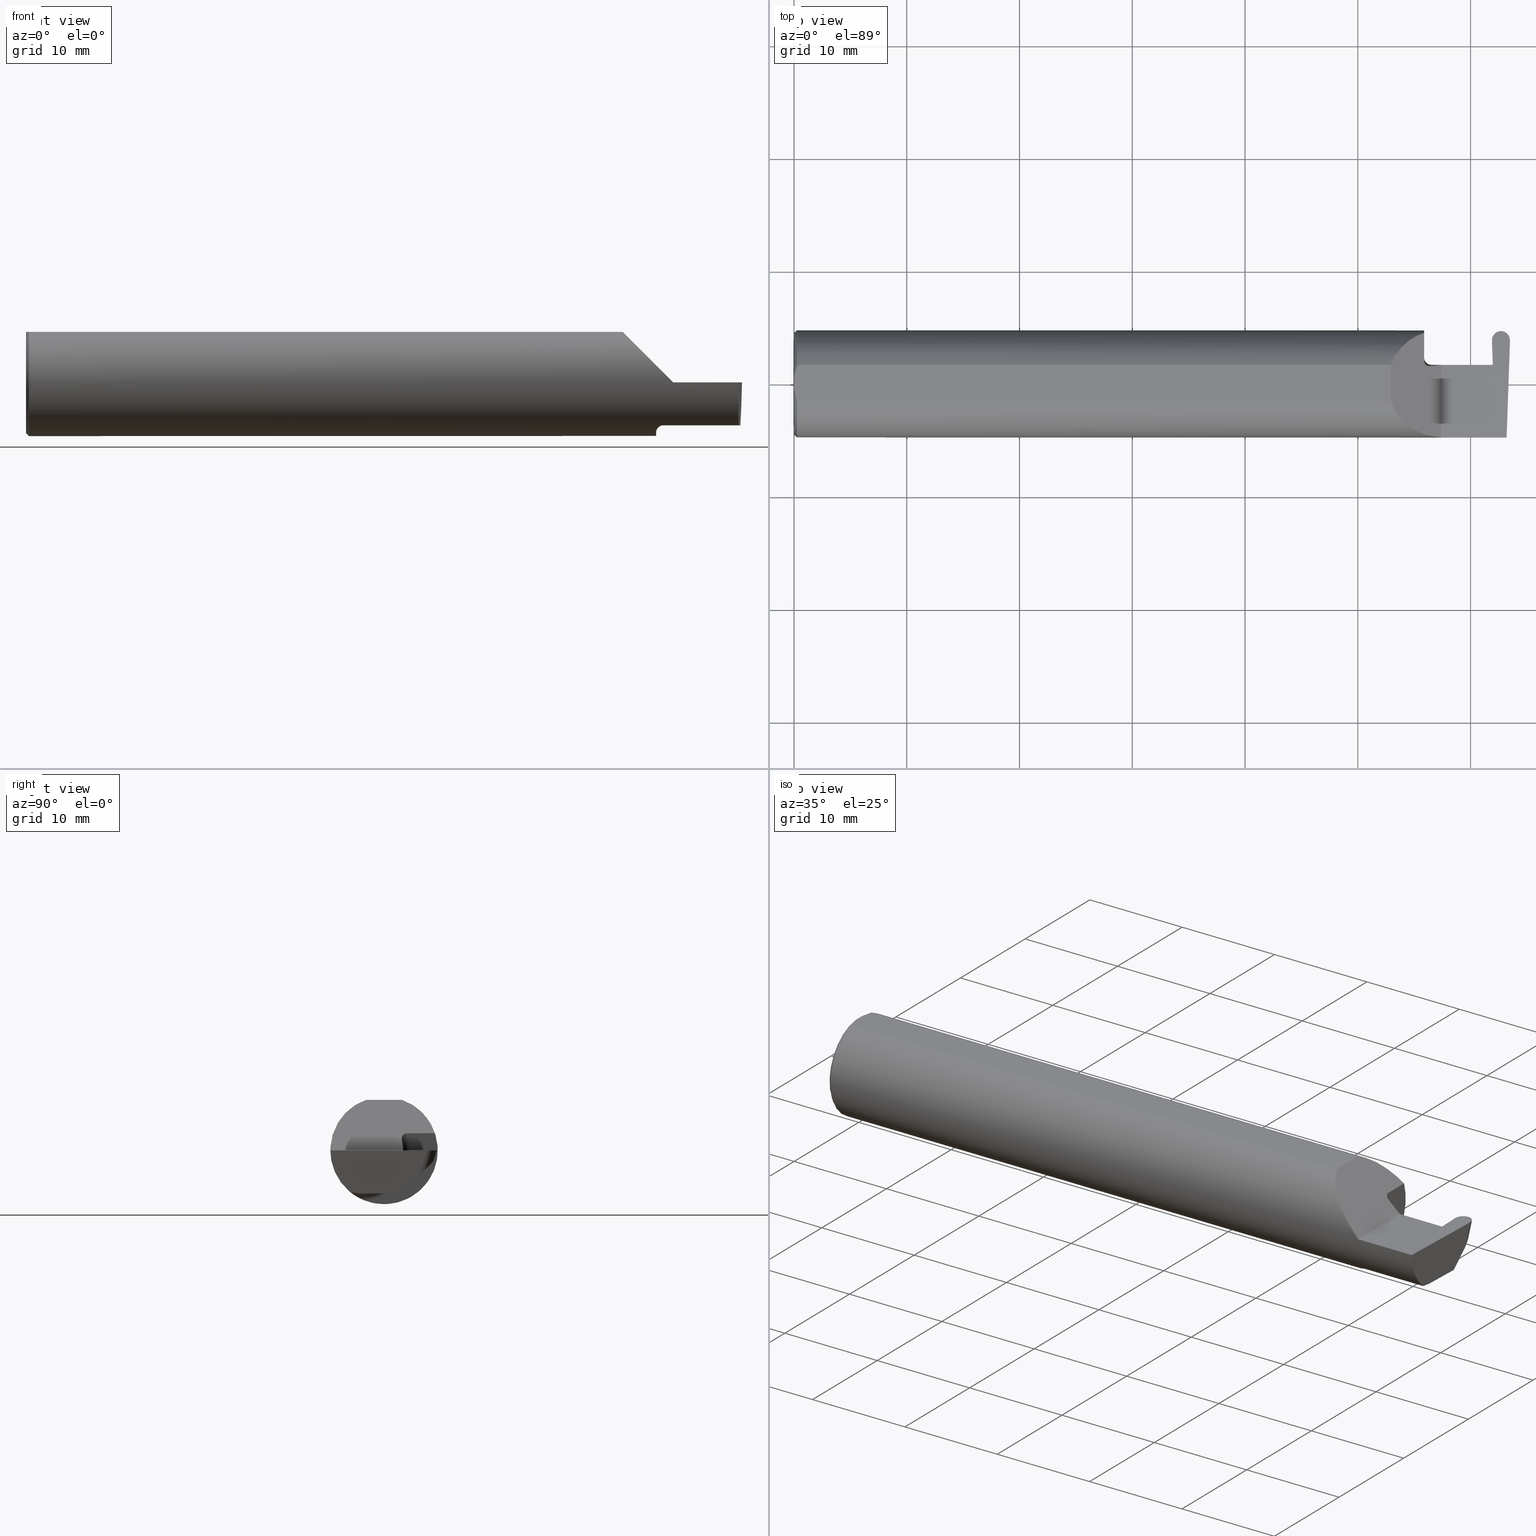
[diagram: canonical four-view strip — front | top / right | iso, engineering-drawing reading convention]
A machine part, canonical four-view strip (front | top / right | iso — engineering-drawing reading convention). The complete STEP part file that produces these views, byte-faithful:
ISO-10303-21;
HEADER;
FILE_DESCRIPTION (( 'STEP AP203' ),
    '1' );
FILE_NAME ('222152-GFR062-4.STEP',
    '2024-06-26T19:09:45',
    ( '' ),
    ( '' ),
    'SwSTEP 2.0',
    'SolidWorks 2024',
    '' );
FILE_SCHEMA (( 'CONFIG_CONTROL_DESIGN' ));
ENDSEC;

DATA;
#1 = FACE_OUTER_BOUND ( 'NONE', #136, .T. ) ;
#2 = DIRECTION ( 'NONE',  ( -0.03489949670249307273, -0.9993908270190959842, 0.000000000000000000 ) ) ;
#3 = ADVANCED_FACE ( 'NONE', ( #120 ), #345, .F. ) ;
#4 = LINE ( 'NONE', #230, #67 ) ;
#5 = ORIENTED_EDGE ( 'NONE', *, *, #566, .F. ) ;
#6 = AXIS2_PLACEMENT_3D ( 'NONE', #591, #482, #693 ) ;
#7 = VECTOR ( 'NONE', #521, 39.37007874015748143 ) ;
#8 = DIRECTION ( 'NONE',  ( -1.000000000000000000, -0.000000000000000000, -0.000000000000000000 ) ) ;
#9 = FACE_OUTER_BOUND ( 'NONE', #270, .T. ) ;
#10 = EDGE_CURVE ( 'NONE', #474, #621, #190, .T. ) ;
#11 = CARTESIAN_POINT ( 'NONE',  ( 2.260000000000000231, -0.2500000000000000555, 2.939152317953647352E-17 ) ) ;
#12 = ORIENTED_EDGE ( 'NONE', *, *, #398, .F. ) ;
#13 = APPROVAL ( #314, 'UNSPECIFIED' ) ;
#14 = ORIENTED_EDGE ( 'NONE', *, *, #215, .F. ) ;
#15 = CARTESIAN_POINT ( 'NONE',  ( 2.200000000000000178, 0.000000000000000000, 0.000000000000000000 ) ) ;
#16 = FACE_OUTER_BOUND ( 'NONE', #84, .T. ) ;
#17 = ORIENTED_EDGE ( 'NONE', *, *, #162, .F. ) ;
#18 = DATE_AND_TIME ( #28, #681 ) ;
#19 = DIRECTION ( 'NONE',  ( -0.000000000000000000, 1.000000000000000000, -0.000000000000000000 ) ) ;
#20 = DIRECTION ( 'NONE',  ( 0.000000000000000000, 0.000000000000000000, -1.000000000000000000 ) ) ;
#21 = ORIENTED_EDGE ( 'NONE', *, *, #525, .F. ) ;
#22 = DATE_AND_TIME ( #249, #272 ) ;
#23 = APPROVAL ( #319, 'UNSPECIFIED' ) ;
#24 = CARTESIAN_POINT ( 'NONE',  ( 2.083649999999998670, -0.2500000000000000555, 0.1763499999999999235 ) ) ;
#25 = LINE ( 'NONE', #312, #271 ) ;
#26 = ORIENTED_EDGE ( 'NONE', *, *, #322, .F. ) ;
#27 = EDGE_CURVE ( 'NONE', #168, #309, #118, .T. ) ;
#28 = CALENDAR_DATE ( 2024, 26, 6 ) ;
#29 = CARTESIAN_POINT ( 'NONE',  ( 2.436880131316879083, 0.1519786885938757270, 0.000000000000000000 ) ) ;
#30 = FACE_OUTER_BOUND ( 'NONE', #463, .T. ) ;
#31 = ORIENTED_EDGE ( 'NONE', *, *, #59, .T. ) ;
#32 = CLOSED_SHELL ( 'NONE', ( #38, #70, #344, #187, #663, #386, #194, #369, #245, #327, #33, #289, #220, #169, #90, #690, #3, #338, #540 ) ) ;
#33 = ADVANCED_FACE ( 'NONE', ( #9 ), #500, .T. ) ;
#34 = APPROVAL_PERSON_ORGANIZATION ( #133, #13, #674 ) ;
#35 = CARTESIAN_POINT ( 'NONE',  ( 2.499932917084233264, 0.1506083980881225692, 0.000000000000000000 ) ) ;
#36 = VERTEX_POINT ( 'NONE', #660 ) ;
#37 = CARTESIAN_POINT ( 'NONE',  ( 2.214233757172356043, 0.06188798250606979828, 0.04576624282764353568 ) ) ;
#38 = ADVANCED_FACE ( 'NONE', ( #183 ), #637, .T. ) ;
#39 =( BOUNDED_CURVE ( )  B_SPLINE_CURVE ( 3, ( #165, #644, #545, #101 ),
 .UNSPECIFIED., .F., .F. ) 
 B_SPLINE_CURVE_WITH_KNOTS ( ( 4, 4 ),
 ( 0.8789888184544107919, 1.107026853503860098 ),
 .UNSPECIFIED. ) 
 CURVE ( )  GEOMETRIC_REPRESENTATION_ITEM ( )  RATIONAL_B_SPLINE_CURVE ( ( 1.000000000000000000, 0.9956712472009928705, 0.9956712472009928705, 1.000000000000000000 ) ) 
 REPRESENTATION_ITEM ( '' )  );
#40 = CARTESIAN_POINT ( 'NONE',  ( 2.488131149766799943, -0.1873499999999999888, 0.000000000000000000 ) ) ;
#41 = EDGE_LOOP ( 'NONE', ( #528, #677, #217, #643 ) ) ;
#42 = CARTESIAN_POINT ( 'NONE',  ( 2.200000000000000178, 0.08104282222773610822, 0.05999999999999957451 ) ) ;
#43 = CARTESIAN_POINT ( 'NONE',  ( 0.000000000000000000, 0.000000000000000000, 0.000000000000000000 ) ) ;
#44 = VERTEX_POINT ( 'NONE', #61 ) ;
#45 = CARTESIAN_POINT ( 'NONE',  ( 2.211575684638518169, 0.06248591091235530803, 0.04842431536148222859 ) ) ;
#46 = LINE ( 'NONE', #273, #614 ) ;
#47 = AXIS2_PLACEMENT_3D ( 'NONE', #254, #145, #20 ) ;
#48 = ORIENTED_EDGE ( 'NONE', *, *, #656, .F. ) ;
#49 = CARTESIAN_POINT ( 'NONE',  ( 2.466287492673649773, 0.2055340630478763031, 0.06427453703177865574 ) ) ;
#50 = EDGE_LOOP ( 'NONE', ( #17, #142, #592, #600, #14 ) ) ;
#51 = CARTESIAN_POINT ( 'NONE',  ( 2.466869195291065964, 0.1338027310180564811, -0.05455566136480603096 ) ) ;
#52 = ORIENTED_EDGE ( 'NONE', *, *, #590, .F. ) ;
#53 = CARTESIAN_POINT ( 'NONE',  ( 2.200000000000000178, -0.06851976604679038685, -0.1743704796142199753 ) ) ;
#54 = EDGE_CURVE ( 'NONE', #252, #368, #698, .T. ) ;
#55 = VECTOR ( 'NONE', #668, 39.37007874015748143 ) ;
#56 = CARTESIAN_POINT ( 'NONE',  ( 0.000000000000000000, 0.06325108694718235836, 0.1763499999999999235 ) ) ;
#57 = VECTOR ( 'NONE', #367, 39.37007874015748143 ) ;
#58 = CALENDAR_DATE ( 2024, 26, 6 ) ;
#59 = EDGE_CURVE ( 'NONE', #44, #404, #452, .T. ) ;
#60 = CARTESIAN_POINT ( 'NONE',  ( 2.083649999999998670, -0.06325108694718283020, 0.1763499999999999235 ) ) ;
#61 = CARTESIAN_POINT ( 'NONE',  ( 2.083649999999998670, 0.06325108694718283020, 0.1763499999999999235 ) ) ;
#62 = CARTESIAN_POINT ( 'NONE',  ( 0.000000000000000000, 0.000000000000000000, 0.000000000000000000 ) ) ;
#63 = CARTESIAN_POINT ( 'NONE',  ( 2.487084196965268390, -0.1623470442677540371, -0.1099340280425340211 ) ) ;
#64 =( BOUNDED_CURVE ( )  B_SPLINE_CURVE ( 3, ( #35, #83, #465, #671 ),
 .UNSPECIFIED., .F., .F. ) 
 B_SPLINE_CURVE_WITH_KNOTS ( ( 4, 4 ),
 ( 1.627103621474502049, 3.225696776093215590 ),
 .UNSPECIFIED. ) 
 CURVE ( )  GEOMETRIC_REPRESENTATION_ITEM ( )  RATIONAL_B_SPLINE_CURVE ( ( 1.000000000000000000, 0.7981407609938108161, 0.7981407609938108161, 1.000000000000000000 ) ) 
 REPRESENTATION_ITEM ( '' )  );
#65 = CARTESIAN_POINT ( 'NONE',  ( 0.009999999999999346217, -0.06325108694718235836, 0.1763499999999999235 ) ) ;
#66 = CARTESIAN_POINT ( 'NONE',  ( 2.441498648347320000, 0.06357628547474601655, -0.09063792740366179157 ) ) ;
#67 = VECTOR ( 'NONE', #349, 39.37007874015748143 ) ;
#68 = CIRCLE ( 'NONE', #462, 0.1773500000000005072 ) ;
#69 = ORIENTED_EDGE ( 'NONE', *, *, #398, .T. ) ;
#70 = ADVANCED_FACE ( 'NONE', ( #231 ), #347, .F. ) ;
#71 = LINE ( 'NONE', #513, #552 ) ;
#72 = ADVANCED_BREP_SHAPE_REPRESENTATION ( '222152-GFR062-4', ( #170, #225 ), #155 ) ;
#73 = CARTESIAN_POINT ( 'NONE',  ( 2.436235694025149279, 0.1704329581048291409, 7.809760431069554296E-18 ) ) ;
#74 = COORDINATED_UNIVERSAL_TIME_OFFSET ( 8, 0, .BEHIND. ) ;
#75 = CARTESIAN_POINT ( 'NONE',  ( 0.001616639753276218755, 0.03405189565400963680, 0.1763499999999999235 ) ) ;
#76 = LINE ( 'NONE', #191, #374 ) ;
#77 = VERTEX_POINT ( 'NONE', #549 ) ;
#78 = PERSON_AND_ORGANIZATION ( #192, #649 ) ;
#79 = AXIS2_PLACEMENT_3D ( 'NONE', #554, #180, #603 ) ;
#80 = VECTOR ( 'NONE', #203, 39.37007874015748143 ) ;
#81 = DIRECTION ( 'NONE',  ( -1.000000000000000000, 0.000000000000000000, 1.224646799147353947E-16 ) ) ;
#82 = EDGE_CURVE ( 'NONE', #621, #411, #558, .T. ) ;
#83 = CARTESIAN_POINT ( 'NONE',  ( 2.500625205974851273, 0.1704329581048291409, -1.247844596711688058E-17 ) ) ;
#84 = EDGE_LOOP ( 'NONE', ( #428, #5, #612, #12 ) ) ;
#85 = PERSON_AND_ORGANIZATION ( #192, #649 ) ;
#86 = CARTESIAN_POINT ( 'NONE',  ( 0.000000000000000000, 0.000000000000000000, 0.000000000000000000 ) ) ;
#87 = DIRECTION ( 'NONE',  ( 0.000000000000000000, -0.7071067811865516806, 0.7071067811865434649 ) ) ;
#88 = ORIENTED_EDGE ( 'NONE', *, *, #444, .F. ) ;
#89 = DATE_TIME_ROLE ( 'classification_date' ) ;
#90 = ADVANCED_FACE ( 'NONE', ( #1 ), #654, .F. ) ;
#91 = CARTESIAN_POINT ( 'NONE',  ( 2.430739223982273156, 0.06664999999999991764, 0.000000000000000000 ) ) ;
#92 =( BOUNDED_CURVE ( )  B_SPLINE_CURVE ( 3, ( #119, #442, #342, #449 ),
 .UNSPECIFIED., .F., .F. ) 
 B_SPLINE_CURVE_WITH_KNOTS ( ( 4, 4 ),
 ( 1.556955361882043976, 3.130020595955853135 ),
 .UNSPECIFIED. ) 
 CURVE ( )  GEOMETRIC_REPRESENTATION_ITEM ( )  RATIONAL_B_SPLINE_CURVE ( ( 1.000000000000000000, 0.8042027643195526210, 0.8042027643195526210, 1.000000000000000000 ) ) 
 REPRESENTATION_ITEM ( '' )  );
#93 = PLANE ( 'NONE',  #571 ) ;
#94 = ORIENTED_EDGE ( 'NONE', *, *, #172, .F. ) ;
#95 = EDGE_CURVE ( 'NONE', #168, #343, #25, .T. ) ;
#96 = AXIS2_PLACEMENT_3D ( 'NONE', #123, #553, #651 ) ;
#97 = B_SPLINE_CURVE_WITH_KNOTS ( 'NONE', 3,
 ( #128, #253, #307, #662 ),
 .UNSPECIFIED., .F., .F.,
 ( 4, 4 ),
 ( 0.009771445421851449736, 0.01092787937989102981 ),
 .UNSPECIFIED. ) ;
#98 = DIRECTION ( 'NONE',  ( -0.01806954526206907760, 0.01744955702544846027, 0.9996844524616944616 ) ) ;
#99 = ORIENTED_EDGE ( 'NONE', *, *, #618, .T. ) ;
#100 = CARTESIAN_POINT ( 'NONE',  ( 2.204146777195072016, 0.06733032564037060019, 0.05585322280492721614 ) ) ;
#101 = CARTESIAN_POINT ( 'NONE',  ( 2.489143054109411057, -0.08334999999999892495, -0.1500000000000000500 ) ) ;
#102 = ORIENTED_EDGE ( 'NONE', *, *, #172, .T. ) ;
#103 = DIRECTION ( 'NONE',  ( 1.000000000000000000, 5.045929899059384297E-16, 0.000000000000000000 ) ) ;
#104 = CARTESIAN_POINT ( 'NONE',  ( 2.497385173767517230, 0.1218770478189730028, -0.08842600372417715182 ) ) ;
#105 = EDGE_LOOP ( 'NONE', ( #492, #629, #124, #263 ) ) ;
#106 = AXIS2_PLACEMENT_3D ( 'NONE', #43, #433, #439 ) ;
#107 = AXIS2_PLACEMENT_3D ( 'NONE', #15, #103, #425 ) ;
#108 = ORIENTED_EDGE ( 'NONE', *, *, #640, .F. ) ;
#109 = LINE ( 'NONE', #331, #333 ) ;
#110 = ORIENTED_EDGE ( 'NONE', *, *, #222, .F. ) ;
#111 = EDGE_CURVE ( 'NONE', #368, #132, #76, .T. ) ;
#112 = LINE ( 'NONE', #393, #459 ) ;
#113 = CARTESIAN_POINT ( 'NONE',  ( 2.442617647571764028, -0.08334999999999999354, -0.1500000000000000777 ) ) ;
#114 = MECHANICAL_CONTEXT ( 'NONE', #688, 'mechanical' ) ;
#115 = EDGE_CURVE ( 'NONE', #650, #683, #676, .T. ) ;
#116 = CARTESIAN_POINT ( 'NONE',  ( 0.009999999999999346217, 0.000000000000000000, 0.000000000000000000 ) ) ;
#117 = VECTOR ( 'NONE', #185, 39.37007874015748854 ) ;
#118 = LINE ( 'NONE', #286, #117 ) ;
#119 = CARTESIAN_POINT ( 'NONE',  ( 2.439475726232482877, 0.1218770478189730028, -0.08842600372417715182 ) ) ;
#120 = FACE_OUTER_BOUND ( 'NONE', #265, .T. ) ;
#121 = DIRECTION ( 'NONE',  ( 1.000000000000000000, 0.000000000000000000, 0.000000000000000000 ) ) ;
#122 = ORIENTED_EDGE ( 'NONE', *, *, #54, .T. ) ;
#123 = CARTESIAN_POINT ( 'NONE',  ( 2.225000000000000089, -0.08335000000000010456, 0.000000000000000000 ) ) ;
#124 = ORIENTED_EDGE ( 'NONE', *, *, #703, .T. ) ;
#125 = AXIS2_PLACEMENT_3D ( 'NONE', #51, #632, #493 ) ;
#126 = EDGE_CURVE ( 'NONE', #309, #243, #251, .T. ) ;
#127 = LOCAL_TIME ( 12, 9, 45.00000000000000000, #550 ) ;
#128 = CARTESIAN_POINT ( 'NONE',  ( 0.009999999999999346217, -0.06325108694718235836, 0.1763499999999999235 ) ) ;
#129 = CARTESIAN_POINT ( 'NONE',  ( -3.937007874019685528E-05, 0.1723030515431495657, -0.03799999999999999906 ) ) ;
#130 = DIRECTION ( 'NONE',  ( 0.02739170151059996255, -0.3089010440752014142, -0.9506996579664919178 ) ) ;
#131 = DIRECTION ( 'NONE',  ( -0.0003154085283454578109, 0.9999999502587288980, 0.000000000000000000 ) ) ;
#132 = VERTEX_POINT ( 'NONE', #628 ) ;
#133 = PERSON_AND_ORGANIZATION ( #192, #649 ) ;
#134 = CARTESIAN_POINT ( 'NONE',  ( 2.200358271039143165, -0.07873626113568053808, -0.1700887912276896896 ) ) ;
#135 = LINE ( 'NONE', #616, #138 ) ;
#136 = EDGE_LOOP ( 'NONE', ( #164, #197, #280, #569, #147 ) ) ;
#137 = PERSON_AND_ORGANIZATION_ROLE ( 'creator' ) ;
#138 = VECTOR ( 'NONE', #353, 39.37007874015747433 ) ;
#139 = CC_DESIGN_SECURITY_CLASSIFICATION ( #154, ( #306 ) ) ;
#140 = CARTESIAN_POINT ( 'NONE',  ( 2.215028532764138358, -0.1137241120808232253, -0.1488947809299406011 ) ) ;
#141 = CARTESIAN_POINT ( 'NONE',  ( 2.442572338171930646, 0.06030305154315083321, -0.1500000000000000500 ) ) ;
#142 = ORIENTED_EDGE ( 'NONE', *, *, #294, .F. ) ;
#143 = DATE_TIME_ROLE ( 'creation_date' ) ;
#144 = CARTESIAN_POINT ( 'NONE',  ( 2.202960551809340028, -0.09317341542745717631, -0.1626248379125198873 ) ) ;
#145 = DIRECTION ( 'NONE',  ( 1.000000000000000000, 0.000000000000000000, 0.000000000000000000 ) ) ;
#146 = EDGE_CURVE ( 'NONE', #305, #36, #64, .T. ) ;
#147 = ORIENTED_EDGE ( 'NONE', *, *, #82, .T. ) ;
#148 = COORDINATED_UNIVERSAL_TIME_OFFSET ( 8, 0, .BEHIND. ) ;
#149 = CC_DESIGN_DATE_AND_TIME_ASSIGNMENT ( #625, #89, ( #154 ) ) ;
#150 = CARTESIAN_POINT ( 'NONE',  ( 2.499932917084233264, 0.1506083980881225692, 0.000000000000000000 ) ) ;
#151 = ORIENTED_EDGE ( 'NONE', *, *, #115, .T. ) ;
#152 = AXIS2_PLACEMENT_3D ( 'NONE', #502, #241, #658 ) ;
#153 = DIRECTION ( 'NONE',  ( 1.000000000000000000, 0.000000000000000000, 0.000000000000000000 ) ) ;
#154 = SECURITY_CLASSIFICATION ( '', '', #310 ) ;
#155 =( GEOMETRIC_REPRESENTATION_CONTEXT ( 3 ) GLOBAL_UNCERTAINTY_ASSIGNED_CONTEXT ( ( #607 ) ) GLOBAL_UNIT_ASSIGNED_CONTEXT ( ( #330, #538, #488 ) ) REPRESENTATION_CONTEXT ( 'NONE', 'WORKASPACE' ) );
#156 = DIRECTION ( 'NONE',  ( -1.000000000000000000, -5.045929899059384297E-16, -0.000000000000000000 ) ) ;
#157 = ORIENTED_EDGE ( 'NONE', *, *, #613, .F. ) ;
#158 = B_SPLINE_CURVE_WITH_KNOTS ( 'NONE', 3,
 ( #456, #75, #311, #302 ),
 .UNSPECIFIED., .F., .F.,
 ( 4, 4 ),
 ( 0.01188664626022267051, 0.01304646959483758001 ),
 .UNSPECIFIED. ) ;
#159 = PERSON_AND_ORGANIZATION ( #192, #649 ) ;
#160 = FACE_OUTER_BOUND ( 'NONE', #512, .T. ) ;
#161 = VERTEX_POINT ( 'NONE', #196 ) ;
#162 = EDGE_CURVE ( 'NONE', #324, #77, #665, .T. ) ;
#163 = PLANE ( 'NONE',  #595 ) ;
#164 = ORIENTED_EDGE ( 'NONE', *, *, #590, .T. ) ;
#165 = CARTESIAN_POINT ( 'NONE',  ( 2.488026713523223243, -0.1172600179964004286, -0.1461167706989304482 ) ) ;
#166 = VECTOR ( 'NONE', #584, 39.37007874015748143 ) ;
#167 = CC_DESIGN_APPROVAL ( #13, ( #154 ) ) ;
#168 = VERTEX_POINT ( 'NONE', #141 ) ;
#169 = ADVANCED_FACE ( 'NONE', ( #682 ), #514, .F. ) ;
#170 = MANIFOLD_SOLID_BREP ( 'Radii', #32 ) ;
#171 = ORIENTED_EDGE ( 'NONE', *, *, #598, .T. ) ;
#172 = EDGE_CURVE ( 'NONE', #495, #683, #441, .T. ) ;
#173 = CARTESIAN_POINT ( 'NONE',  ( 2.468430450000000054, 0.1753165746847639150, -0.02871425790363830652 ) ) ;
#174 = ORIENTED_EDGE ( 'NONE', *, *, #210, .T. ) ;
#175 = DIRECTION ( 'NONE',  ( 0.000000000000000000, -1.000000000000000000, 0.000000000000000000 ) ) ;
#176 = VECTOR ( 'NONE', #623, 39.37007874015748143 ) ;
#177 = DIRECTION ( 'NONE',  ( 0.9992386149554828290, 0.03489418134010615485, 0.01745240643728358798 ) ) ;
#178 = CARTESIAN_POINT ( 'NONE',  ( 2.468430450000000054, 0.1722870660481372329, -0.03801598549501233187 ) ) ;
#179 = PRODUCT ( '222152-GFR062-4', '222152-GFR062-4', '', ( #114 ) ) ;
#180 = DIRECTION ( 'NONE',  ( 0.9998367324388628408, 0.0003153570480505333835, 0.01806679318280454000 ) ) ;
#181 = PRODUCT_RELATED_PRODUCT_CATEGORY ( 'detail', '', ( #179 ) ) ;
#182 = FACE_OUTER_BOUND ( 'NONE', #50, .T. ) ;
#183 = FACE_OUTER_BOUND ( 'NONE', #221, .T. ) ;
#184 = CARTESIAN_POINT ( 'NONE',  ( 2.236476718690367793, 0.06526343940705725544, 0.02352328130963212902 ) ) ;
#185 = DIRECTION ( 'NONE',  ( -0.01299916717458447432, 0.7070470357949163454, 0.7070470357949245610 ) ) ;
#186 = CIRCLE ( 'NONE', #680, 0.1873499999999999888 ) ;
#187 = ADVANCED_FACE ( 'NONE', ( #30 ), #511, .F. ) ;
#188 = PERSON_AND_ORGANIZATION_ROLE ( 'design_supplier' ) ;
#189 = LINE ( 'NONE', #29, #80 ) ;
#190 =( BOUNDED_CURVE ( )  B_SPLINE_CURVE ( 3, ( #113, #288, #66, #507 ),
 .UNSPECIFIED., .F., .F. ) 
 B_SPLINE_CURVE_WITH_KNOTS ( ( 4, 4 ),
 ( 3.159045946109708236, 4.694935687864668417 ),
 .UNSPECIFIED. ) 
 CURVE ( )  GEOMETRIC_REPRESENTATION_ITEM ( )  RATIONAL_B_SPLINE_CURVE ( ( 1.000000000000000000, 0.8128932002257789335, 0.8128932002257789335, 1.000000000000000000 ) ) 
 REPRESENTATION_ITEM ( '' )  );
#191 = CARTESIAN_POINT ( 'NONE',  ( 3.749399456654646757E-32, -0.1873499999999999610, 3.061616997868383634E-16 ) ) ;
#192 = PERSON ( 'UNSPECIFIED', 'UNSPECIFIED', 'UNSPECIFIED', ('UNSPECIFIED'), ('UNSPECIFIED'), ('UNSPECIFIED') ) ;
#193 = ORIENTED_EDGE ( 'NONE', *, *, #27, .F. ) ;
#194 = ADVANCED_FACE ( 'NONE', ( #16 ), #486, .T. ) ;
#195 = CARTESIAN_POINT ( 'NONE',  ( 2.213203859946834662, -0.1120371980050636346, -0.1501764597936561252 ) ) ;
#196 = CARTESIAN_POINT ( 'NONE',  ( 0.000000000000000000, 0.01880691362239451242, 0.1763499999999999235 ) ) ;
#197 = ORIENTED_EDGE ( 'NONE', *, *, #215, .T. ) ;
#198 = CARTESIAN_POINT ( 'NONE',  ( 2.225000000000000089, 0.06250952145814826777, 0.03500000000000007272 ) ) ;
#199 = CARTESIAN_POINT ( 'NONE',  ( 2.260000000000000231, -0.2500000000000000555, 2.939152317953647352E-17 ) ) ;
#200 = ORIENTED_EDGE ( 'NONE', *, *, #413, .T. ) ;
#201 = AXIS2_PLACEMENT_3D ( 'NONE', #371, #156, #384 ) ;
#202 = VECTOR ( 'NONE', #619, 39.37007874015748143 ) ;
#203 = DIRECTION ( 'NONE',  ( -0.03489949670249346131, 0.9993908270190959842, -0.000000000000000000 ) ) ;
#204 = DIRECTION ( 'NONE',  ( 0.000000000000000000, 0.000000000000000000, -1.000000000000000000 ) ) ;
#205 = VERTEX_POINT ( 'NONE', #469 ) ;
#206 = CALENDAR_DATE ( 2024, 26, 6 ) ;
#207 = DIRECTION ( 'NONE',  ( -0.9992386149554828290, 0.03489418134010577321, 0.01745240643728358798 ) ) ;
#208 = DIRECTION ( 'NONE',  ( 0.000000000000000000, -0.3090169943749482284, -0.9510565162951533091 ) ) ;
#209 = VERTEX_POINT ( 'NONE', #577 ) ;
#210 = EDGE_CURVE ( 'NONE', #324, #36, #410, .T. ) ;
#211 = DIRECTION ( 'NONE',  ( 0.000000000000000000, 0.000000000000000000, 1.000000000000000000 ) ) ;
#212 = ORIENTED_EDGE ( 'NONE', *, *, #95, .F. ) ;
#213 = FACE_OUTER_BOUND ( 'NONE', #365, .T. ) ;
#214 = ORIENTED_EDGE ( 'NONE', *, *, #656, .T. ) ;
#215 = EDGE_CURVE ( 'NONE', #77, #243, #478, .T. ) ;
#216 = DIRECTION ( 'NONE',  ( -1.000000000000000000, -5.045929899059384297E-16, -0.000000000000000000 ) ) ;
#217 = ORIENTED_EDGE ( 'NONE', *, *, #95, .T. ) ;
#218 =( BOUNDED_CURVE ( )  B_SPLINE_CURVE ( 3, ( #346, #227, #653, #236 ),
 .UNSPECIFIED., .F., .T. ) 
 B_SPLINE_CURVE_WITH_KNOTS ( ( 4, 4 ),
 ( 3.153164711223715777, 4.726229945297542478 ),
 .UNSPECIFIED. ) 
 CURVE ( )  GEOMETRIC_REPRESENTATION_ITEM ( )  RATIONAL_B_SPLINE_CURVE ( ( 1.000000000000000000, 0.8042027643195484021, 0.8042027643195484021, 1.000000000000000000 ) ) 
 REPRESENTATION_ITEM ( '' )  );
#219 = CYLINDRICAL_SURFACE ( 'NONE', #106, 0.1873499999999999888 ) ;
#220 = ADVANCED_FACE ( 'NONE', ( #580 ), #93, .F. ) ;
#221 = EDGE_LOOP ( 'NONE', ( #470, #151, #94, #695 ) ) ;
#222 = EDGE_CURVE ( 'NONE', #305, #368, #135, .T. ) ;
#223 = CARTESIAN_POINT ( 'NONE',  ( 0.009999999999999346217, 0.06325108694718235836, 0.1763499999999999235 ) ) ;
#224 = AXIS2_PLACEMENT_3D ( 'NONE', #228, #177, #605 ) ;
#225 = AXIS2_PLACEMENT_3D ( 'NONE', #378, #696, #153 ) ;
#226 = ORIENTED_EDGE ( 'NONE', *, *, #10, .T. ) ;
#227 = CARTESIAN_POINT ( 'NONE',  ( 2.486891473655445939, 0.1715521506114310035, -0.03875090093171854738 ) ) ;
#228 = CARTESIAN_POINT ( 'NONE',  ( 2.436880131316879083, 0.1519786885938757270, 0.000000000000000000 ) ) ;
#229 = EDGE_CURVE ( 'NONE', #335, #343, #360, .T. ) ;
#230 = CARTESIAN_POINT ( 'NONE',  ( 2.199999999999998845, 0.06655862405286083749, -0.005234924505475069094 ) ) ;
#231 = FACE_OUTER_BOUND ( 'NONE', #329, .T. ) ;
#232 = CC_DESIGN_PERSON_AND_ORGANIZATION_ASSIGNMENT ( #259, #520, ( #154 ) ) ;
#233 = LINE ( 'NONE', #295, #320 ) ;
#234 = TOROIDAL_SURFACE ( 'NONE', #201, 0.1750000000000001277, 0.02499999999999993894 ) ;
#235 = ORIENTED_EDGE ( 'NONE', *, *, #547, .T. ) ;
#236 = CARTESIAN_POINT ( 'NONE',  ( 2.497385173767517230, 0.1218770478189730028, -0.08842600372417715182 ) ) ;
#237 = PRODUCT_DEFINITION_SHAPE ( 'NONE', 'NONE',  #437 ) ;
#238 = CARTESIAN_POINT ( 'NONE',  ( 2.200000000000000178, -0.08335000000000011844, 0.000000000000000000 ) ) ;
#239 = ORIENTED_EDGE ( 'NONE', *, *, #494, .F. ) ;
#240 = CARTESIAN_POINT ( 'NONE',  ( 2.430708765333227994, 0.06661954135095465857, -0.001744974835128322013 ) ) ;
#241 = DIRECTION ( 'NONE',  ( 7.486943585142156164E-15, -0.9998476951563912696, 0.01745240643728358451 ) ) ;
#242 = EDGE_CURVE ( 'NONE', #474, #168, #406, .T. ) ;
#243 = VERTEX_POINT ( 'NONE', #334 ) ;
#244 = LINE ( 'NONE', #24, #506 ) ;
#245 = ADVANCED_FACE ( 'NONE', ( #268 ), #234, .F. ) ;
#246 = DIRECTION ( 'NONE',  ( 1.000000000000000000, 0.000000000000000000, 0.000000000000000000 ) ) ;
#247 = VECTOR ( 'NONE', #339, 39.37007874015748143 ) ;
#248 = ORIENTED_EDGE ( 'NONE', *, *, #413, .F. ) ;
#249 = CALENDAR_DATE ( 2024, 26, 6 ) ;
#250 = CARTESIAN_POINT ( 'NONE',  ( 2.206304331342287650, -0.1022198306720688427, -0.1570962426853820260 ) ) ;
#251 = LINE ( 'NONE', #308, #627 ) ;
#252 = VERTEX_POINT ( 'NONE', #646 ) ;
#253 = CARTESIAN_POINT ( 'NONE',  ( 0.005151108632379595466, -0.04888864921576189376, 0.1763499999999999235 ) ) ;
#254 = CARTESIAN_POINT ( 'NONE',  ( 0.000000000000000000, 0.000000000000000000, 0.000000000000000000 ) ) ;
#255 = ORIENTED_EDGE ( 'NONE', *, *, #634, .F. ) ;
#256 = CARTESIAN_POINT ( 'NONE',  ( 2.208439486659306450, -0.1064616213911155768, -0.1542305641651502135 ) ) ;
#257 = CARTESIAN_POINT ( 'NONE',  ( -3.937007874019685528E-05, 0.1846500000000000363, 0.000000000000000000 ) ) ;
#258 = ORIENTED_EDGE ( 'NONE', *, *, #608, .T. ) ;
#259 = PERSON_AND_ORGANIZATION ( #192, #649 ) ;
#260 = APPROVAL_PERSON_ORGANIZATION ( #159, #279, #326 ) ;
#261 = APPLICATION_PROTOCOL_DEFINITION ( 'international standard', 'config_control_design', 1994, #325 ) ;
#262 = DIRECTION ( 'NONE',  ( -0.7071067811865509034, 0.000000000000000000, 0.7071067811865440200 ) ) ;
#263 = ORIENTED_EDGE ( 'NONE', *, *, #467, .T. ) ;
#264 = FACE_OUTER_BOUND ( 'NONE', #617, .T. ) ;
#265 = EDGE_LOOP ( 'NONE', ( #226, #318, #193, #624 ) ) ;
#266 =( BOUNDED_CURVE ( )  B_SPLINE_CURVE ( 3, ( #445, #560, #555, #395 ),
 .UNSPECIFIED., .F., .F. ) 
 B_SPLINE_CURVE_WITH_KNOTS ( ( 4, 4 ),
 ( 4.712388980384688786, 5.938809479923471635 ),
 .UNSPECIFIED. ) 
 CURVE ( )  GEOMETRIC_REPRESENTATION_ITEM ( )  RATIONAL_B_SPLINE_CURVE ( ( 1.000000000000000000, 0.8785364999009659392, 0.8785364999009659392, 1.000000000000000000 ) ) 
 REPRESENTATION_ITEM ( '' )  );
#267 = CARTESIAN_POINT ( 'NONE',  ( 2.199999999999999734, 0.07723724220654795691, 0.05999999999999976186 ) ) ;
#268 = FACE_OUTER_BOUND ( 'NONE', #105, .T. ) ;
#269 = EDGE_CURVE ( 'NONE', #252, #205, #39, .T. ) ;
#270 = EDGE_LOOP ( 'NONE', ( #546, #466, #298, #313, #523, #248, #633, #515, #645 ) ) ;
#271 = VECTOR ( 'NONE', #573, 39.37007874015748143 ) ;
#272 = LOCAL_TIME ( 12, 9, 45.00000000000000000, #74 ) ;
#273 = CARTESIAN_POINT ( 'NONE',  ( 2.439859874782298377, 0.06664999999999998703, -9.645561665750239894E-21 ) ) ;
#274 = ORIENTED_EDGE ( 'NONE', *, *, #162, .T. ) ;
#275 = CYLINDRICAL_SURFACE ( 'NONE', #125, 0.03150000000000000716 ) ;
#276 = EDGE_LOOP ( 'NONE', ( #292, #438, #337, #443, #212, #534 ) ) ;
#277 = EDGE_CURVE ( 'NONE', #205, #474, #109, .T. ) ;
#278 = DIRECTION ( 'NONE',  ( -0.02739170151059996255, 0.3089010440752014142, 0.9506996579664918068 ) ) ;
#279 = APPROVAL ( #375, 'UNSPECIFIED' ) ;
#280 = ORIENTED_EDGE ( 'NONE', *, *, #126, .F. ) ;
#281 = CARTESIAN_POINT ( 'NONE',  ( 2.200000000000000178, -0.08335000000000011844, 0.000000000000000000 ) ) ;
#282 = AXIS2_PLACEMENT_3D ( 'NONE', #281, #499, #175 ) ;
#283 = CIRCLE ( 'NONE', #107, 0.1873499999999999888 ) ;
#284 = CARTESIAN_POINT ( 'NONE',  ( 2.439859874782298377, 0.06664999999999998703, -9.645561665750239894E-21 ) ) ;
#285 = CARTESIAN_POINT ( 'NONE',  ( 2.442617647571764028, -0.08334999999999999354, -0.1500000000000000777 ) ) ;
#286 = CARTESIAN_POINT ( 'NONE',  ( 2.440100800615974563, 0.1947342254272303730, -0.01556882611591895414 ) ) ;
#287 = DIRECTION ( 'NONE',  ( 1.000000000000000000, 7.488084056613327882E-15, -0.000000000000000000 ) ) ;
#288 = CARTESIAN_POINT ( 'NONE',  ( 2.442590694315768030, 0.002105059811798115545, -0.1500000000000000777 ) ) ;
#289 = ADVANCED_FACE ( 'NONE', ( #381 ), #328, .F. ) ;
#290 = CARTESIAN_POINT ( 'NONE',  ( 2.430647848035137226, 0.06655862405286411265, -0.005234924505384965822 ) ) ;
#291 = AXIS2_PLACEMENT_3D ( 'NONE', #62, #659, #451 ) ;
#292 = ORIENTED_EDGE ( 'NONE', *, *, #126, .T. ) ;
#293 = CC_DESIGN_APPROVAL ( #279, ( #437 ) ) ;
#294 = EDGE_CURVE ( 'NONE', #209, #324, #593, .T. ) ;
#295 = CARTESIAN_POINT ( 'NONE',  ( 2.439859874782298377, 0.06664999999999998703, 0.000000000000000000 ) ) ;
#296 = DIRECTION ( 'NONE',  ( -1.000000000000000000, -0.000000000000000000, -0.000000000000000000 ) ) ;
#297 = DIMENSIONAL_EXPONENTS ( 1.000000000000000000, 0.000000000000000000, 0.000000000000000000, 0.000000000000000000, 0.000000000000000000, 0.000000000000000000, 0.000000000000000000 ) ;
#298 = ORIENTED_EDGE ( 'NONE', *, *, #613, .T. ) ;
#299 = DIRECTION ( 'NONE',  ( 0.000000000000000000, 0.000000000000000000, -1.000000000000000000 ) ) ;
#300 = DIRECTION ( 'NONE',  ( -1.000000000000000000, -0.000000000000000000, -0.000000000000000000 ) ) ;
#301 = PERSON_AND_ORGANIZATION ( #192, #649 ) ;
#302 = CARTESIAN_POINT ( 'NONE',  ( 0.009999999999999346217, 0.06325108694718235836, 0.1763499999999999235 ) ) ;
#303 = CARTESIAN_POINT ( 'NONE',  ( 0.009999999999999346217, 0.000000000000000000, 0.000000000000000000 ) ) ;
#304 = AXIS2_PLACEMENT_3D ( 'NONE', #238, #556, #610 ) ;
#305 = VERTEX_POINT ( 'NONE', #150 ) ;
#306 = PRODUCT_DEFINITION_FORMATION_WITH_SPECIFIED_SOURCE ( 'ANY', '', #179, .NOT_KNOWN. ) ;
#307 = CARTESIAN_POINT ( 'NONE',  ( 0.001595548104417217512, -0.03385300050298979679, 0.1763499999999999235 ) ) ;
#308 = CARTESIAN_POINT ( 'NONE',  ( 2.433494859791076159, 0.2360451904409928692, 0.02574213889784403991 ) ) ;
#309 = VERTEX_POINT ( 'NONE', #702 ) ;
#310 = SECURITY_CLASSIFICATION_LEVEL ( 'unclassified' ) ;
#311 = CARTESIAN_POINT ( 'NONE',  ( 0.005155213631852355663, 0.04890080824240217866, 0.1763499999999999235 ) ) ;
#312 = CARTESIAN_POINT ( 'NONE',  ( -3.937007874019685528E-05, 0.06030305154315079852, -0.1500000000000000500 ) ) ;
#313 = ORIENTED_EDGE ( 'NONE', *, *, #640, .T. ) ;
#314 = APPROVAL_STATUS ( 'not_yet_approved' ) ;
#315 = CARTESIAN_POINT ( 'NONE',  ( 2.200000000000000178, 0.1774824568795465018, 0.05999999999999961614 ) ) ;
#316 = B_SPLINE_CURVE_WITH_KNOTS ( 'NONE', 3,
 ( #675, #420, #240, #91 ),
 .UNSPECIFIED., .F., .F.,
 ( 4, 4 ),
 ( 0.000000000000000000, 1.000000000000000000 ),
 .UNSPECIFIED. ) ;
#317 = CARTESIAN_POINT ( 'NONE',  ( -3.937007874019685528E-05, 0.1846500000000000363, 0.000000000000000000 ) ) ;
#318 = ORIENTED_EDGE ( 'NONE', *, *, #352, .F. ) ;
#319 = APPROVAL_STATUS ( 'not_yet_approved' ) ;
#320 = VECTOR ( 'NONE', #287, 39.37007874015748143 ) ;
#321 = CARTESIAN_POINT ( 'NONE',  ( 2.222331837506049901, 0.06186927743178083361, 0.03766816249395005256 ) ) ;
#322 = EDGE_CURVE ( 'NONE', #44, #669, #341, .T. ) ;
#323 = CARTESIAN_POINT ( 'NONE',  ( 2.103305020982357387, 0.1180511404724818164, 0.1566949790176410395 ) ) ;
#324 = VERTEX_POINT ( 'NONE', #376 ) ;
#325 = APPLICATION_CONTEXT ( 'configuration controlled 3d designs of mechanical parts and assemblies' ) ;
#326 = APPROVAL_ROLE ( '' ) ;
#327 = ADVANCED_FACE ( 'NONE', ( #336 ), #491, .T. ) ;
#328 = PLANE ( 'NONE',  #6 ) ;
#329 = EDGE_LOOP ( 'NONE', ( #639, #200, #171, #385 ) ) ;
#330 =( CONVERSION_BASED_UNIT ( 'INCH', #533 ) LENGTH_UNIT ( ) NAMED_UNIT ( #297 ) );
#331 = CARTESIAN_POINT ( 'NONE',  ( 2.733184360054362827, -0.08334999999999892495, -0.1500000000000000500 ) ) ;
#332 = ORIENTED_EDGE ( 'NONE', *, *, #686, .F. ) ;
#333 = VECTOR ( 'NONE', #379, 39.37007874015748143 ) ;
#334 = CARTESIAN_POINT ( 'NONE',  ( 2.439475726232482877, 0.1218770478189730028, -0.08842600372417715182 ) ) ;
#335 = VERTEX_POINT ( 'NONE', #104 ) ;
#336 = FACE_OUTER_BOUND ( 'NONE', #430, .T. ) ;
#337 = ORIENTED_EDGE ( 'NONE', *, *, #494, .T. ) ;
#338 = ADVANCED_FACE ( 'NONE', ( #213 ), #275, .T. ) ;
#339 = DIRECTION ( 'NONE',  ( 0.02739170151059983765, 0.3089010440752013587, 0.9506996579664918068 ) ) ;
#340 = CARTESIAN_POINT ( 'NONE',  ( 2.487121452143544964, -0.1873499999999999610, -0.05781030015605127109 ) ) ;
#341 =( BOUNDED_CURVE ( )  B_SPLINE_CURVE ( 3, ( #484, #323, #700, #536 ),
 .UNSPECIFIED., .F., .F. ) 
 B_SPLINE_CURVE_WITH_KNOTS ( ( 4, 4 ),
 ( 0.3443758272561143752, 1.244796402594305018 ),
 .UNSPECIFIED. ) 
 CURVE ( )  GEOMETRIC_REPRESENTATION_ITEM ( )  RATIONAL_B_SPLINE_CURVE ( ( 1.000000000000000000, 0.9335704097038357574, 0.9335704097038357574, 1.000000000000000000 ) ) 
 REPRESENTATION_ITEM ( '' )  );
#342 = CARTESIAN_POINT ( 'NONE',  ( 2.449969426344554169, 0.1715521506114305039, -0.03875090093171906086 ) ) ;
#343 = VERTEX_POINT ( 'NONE', #539 ) ;
#344 = ADVANCED_FACE ( 'NONE', ( #160 ), #219, .T. ) ;
#345 = PLANE ( 'NONE',  #79 ) ;
#346 = CARTESIAN_POINT ( 'NONE',  ( 2.468430450000000054, 0.1722870660481372329, -0.03801598549501233187 ) ) ;
#347 = PLANE ( 'NONE',  #152 ) ;
#348 = EDGE_CURVE ( 'NONE', #495, #454, #642, .T. ) ;
#349 = DIRECTION ( 'NONE',  ( -1.000000000000000000, -5.045929899059384297E-16, -0.000000000000000000 ) ) ;
#350 = DIRECTION ( 'NONE',  ( 0.000000000000000000, 0.000000000000000000, -1.000000000000000000 ) ) ;
#351 = CC_DESIGN_APPROVAL ( #23, ( #306 ) ) ;
#352 = EDGE_CURVE ( 'NONE', #309, #621, #46, .T. ) ;
#353 = DIRECTION ( 'NONE',  ( -0.03489949670249308661, -0.9993908270190960952, 0.000000000000000000 ) ) ;
#354 = LINE ( 'NONE', #409, #7 ) ;
#355 = CARTESIAN_POINT ( 'NONE',  ( 2.436927982915767288, 0.1506083980881225415, 0.000000000000000000 ) ) ;
#356 = EDGE_LOOP ( 'NONE', ( #448, #594, #362 ) ) ;
#357 = APPROVAL_DATE_TIME ( #582, #279 ) ;
#358 = CC_DESIGN_PERSON_AND_ORGANIZATION_ASSIGNMENT ( #587, #635, ( #179 ) ) ;
#359 = CARTESIAN_POINT ( 'NONE',  ( 2.200000000000000178, -0.06851976604679038685, -0.1743704796142199753 ) ) ;
#360 = LINE ( 'NONE', #461, #55 ) ;
#361 = AXIS2_PLACEMENT_3D ( 'NONE', #199, #364, #262 ) ;
#362 = ORIENTED_EDGE ( 'NONE', *, *, #477, .T. ) ;
#363 = CARTESIAN_POINT ( 'NONE',  ( 0.000000000000000000, 0.000000000000000000, -0.1773500000000005072 ) ) ;
#364 = DIRECTION ( 'NONE',  ( -0.7071067811865441310, 0.000000000000000000, -0.7071067811865510144 ) ) ;
#365 = EDGE_LOOP ( 'NONE', ( #21, #239, #88, #400, #687 ) ) ;
#366 = DIRECTION ( 'NONE',  ( -1.224646799147353947E-16, 0.000000000000000000, -1.000000000000000000 ) ) ;
#367 = DIRECTION ( 'NONE',  ( 1.000000000000000000, -0.000000000000000000, -0.000000000000000000 ) ) ;
#368 = VERTEX_POINT ( 'NONE', #40 ) ;
#369 = ADVANCED_FACE ( 'NONE', ( #264 ), #163, .T. ) ;
#370 = CARTESIAN_POINT ( 'NONE',  ( 2.430739223982273156, 0.06664999999999991764, 0.000000000000000000 ) ) ;
#371 = CARTESIAN_POINT ( 'NONE',  ( 2.225000000000000089, -0.08335000000000011844, 0.000000000000000000 ) ) ;
#372 = ORIENTED_EDGE ( 'NONE', *, *, #210, .F. ) ;
#373 = EDGE_CURVE ( 'NONE', #252, #699, #489, .T. ) ;
#374 = VECTOR ( 'NONE', #300, 39.37007874015748143 ) ;
#375 = APPROVAL_STATUS ( 'not_yet_approved' ) ;
#376 = CARTESIAN_POINT ( 'NONE',  ( 2.468139380300150343, 0.1846500000000000363, 0.000000000000000000 ) ) ;
#377 = ORIENTED_EDGE ( 'NONE', *, *, #373, .F. ) ;
#378 = CARTESIAN_POINT ( 'NONE',  ( 0.000000000000000000, 0.000000000000000000, 0.000000000000000000 ) ) ;
#379 = DIRECTION ( 'NONE',  ( -1.000000000000000000, -0.000000000000000000, -0.000000000000000000 ) ) ;
#380 = ORIENTED_EDGE ( 'NONE', *, *, #661, .F. ) ;
#381 = FACE_OUTER_BOUND ( 'NONE', #41, .T. ) ;
#382 = VERTEX_POINT ( 'NONE', #636 ) ;
#383 = VECTOR ( 'NONE', #216, 39.37007874015748143 ) ;
#384 = DIRECTION ( 'NONE',  ( 5.045929899059384297E-16, -1.000000000000000000, 0.000000000000000000 ) ) ;
#385 = ORIENTED_EDGE ( 'NONE', *, *, #391, .T. ) ;
#386 = ADVANCED_FACE ( 'NONE', ( #497 ), #508, .F. ) ;
#387 = CARTESIAN_POINT ( 'NONE',  ( 0.000000000000000000, 0.000000000000000000, 0.000000000000000000 ) ) ;
#388 = VERTEX_POINT ( 'NONE', #602 ) ;
#389 = DIRECTION ( 'NONE',  ( -0.000000000000000000, 1.000000000000000000, -0.000000000000000000 ) ) ;
#390 = EDGE_LOOP ( 'NONE', ( #701, #485, #490, #586, #561, #479 ) ) ;
#391 = EDGE_CURVE ( 'NONE', #691, #411, #233, .T. ) ;
#392 = VECTOR ( 'NONE', #296, 39.37007874015748143 ) ;
#393 = CARTESIAN_POINT ( 'NONE',  ( 2.489440290287315172, -0.07483826952468530802, -0.1500000000000000500 ) ) ;
#394 = CARTESIAN_POINT ( 'NONE',  ( 2.488026713523223243, -0.1172600179964004286, -0.1461167706989304482 ) ) ;
#395 = CARTESIAN_POINT ( 'NONE',  ( 2.083649999999998670, -0.06325108694718283020, 0.1763499999999999235 ) ) ;
#396 = EDGE_LOOP ( 'NONE', ( #235, #597, #174 ) ) ;
#397 = CYLINDRICAL_SURFACE ( 'NONE', #529, 0.03149999999999998634 ) ;
#398 = EDGE_CURVE ( 'NONE', #683, #404, #186, .T. ) ;
#399 = CARTESIAN_POINT ( 'NONE',  ( 2.488131149766799943, -0.1873499999999999888, 0.000000000000000000 ) ) ;
#400 = ORIENTED_EDGE ( 'NONE', *, *, #547, .F. ) ;
#401 = CARTESIAN_POINT ( 'NONE',  ( 2.260000000000000231, 0.06664999999999991764, 2.939152317953647352E-17 ) ) ;
#402 = CIRCLE ( 'NONE', #96, 0.1500000000000001610 ) ;
#403 = DIRECTION ( 'NONE',  ( 1.000000000000000000, 0.000000000000000000, 0.000000000000000000 ) ) ;
#404 = VERTEX_POINT ( 'NONE', #223 ) ;
#405 = DIRECTION ( 'NONE',  ( 0.000000000000000000, 0.9510565162951534202, -0.3090169943749483394 ) ) ;
#406 = LINE ( 'NONE', #620, #542 ) ;
#407 =( BOUNDED_CURVE ( )  B_SPLINE_CURVE ( 3, ( #198, #184, #414, #401 ),
 .UNSPECIFIED., .F., .F. ) 
 B_SPLINE_CURVE_WITH_KNOTS ( ( 4, 4 ),
 ( 1.335292090074097437, 1.570796326794897002 ),
 .UNSPECIFIED. ) 
 CURVE ( )  GEOMETRIC_REPRESENTATION_ITEM ( )  RATIONAL_B_SPLINE_CURVE ( ( 1.000000000000000000, 0.9953834841226971708, 0.9953834841226971708, 1.000000000000000000 ) ) 
 REPRESENTATION_ITEM ( '' )  );
#408 = ORIENTED_EDGE ( 'NONE', *, *, #322, .T. ) ;
#409 = CARTESIAN_POINT ( 'NONE',  ( 2.466869195291065076, 0.1637610112813538132, -0.06428969668761687351 ) ) ;
#410 = LINE ( 'NONE', #257, #57 ) ;
#411 = VERTEX_POINT ( 'NONE', #599 ) ;
#412 = APPROVAL_DATE_TIME ( #18, #23 ) ;
#413 = EDGE_CURVE ( 'NONE', #621, #519, #4, .T. ) ;
#414 = CARTESIAN_POINT ( 'NONE',  ( 2.248197494504676097, 0.06665000000000000091, 0.01180250549532441649 ) ) ;
#415 = DIRECTION ( 'NONE',  ( 0.000000000000000000, -0.7071067811865434649, -0.7071067811865516806 ) ) ;
#416 = AXIS2_PLACEMENT_3D ( 'NONE', #596, #689, #436 ) ;
#417 = ORIENTED_EDGE ( 'NONE', *, *, #473, .T. ) ;
#418 = AXIS2_PLACEMENT_3D ( 'NONE', #476, #207, #535 ) ;
#419 = PERSON_AND_ORGANIZATION_ROLE ( 'creator' ) ;
#420 = CARTESIAN_POINT ( 'NONE',  ( 2.430678306684182832, 0.06658908270190938561, -0.003489949670256644459 ) ) ;
#421 = DIRECTION ( 'NONE',  ( -0.03701744261649762141, 0.7066221440565398915, 0.7066221440565481071 ) ) ;
#422 = EDGE_CURVE ( 'NONE', #562, #161, #557, .T. ) ;
#423 = ORIENTED_EDGE ( 'NONE', *, *, #111, .F. ) ;
#424 = COORDINATED_UNIVERSAL_TIME_OFFSET ( 8, 0, .BEHIND. ) ;
#425 = DIRECTION ( 'NONE',  ( 0.000000000000000000, 1.000000000000000000, 0.000000000000000000 ) ) ;
#426 = CARTESIAN_POINT ( 'NONE',  ( 0.000000000000000000, -0.06325108694718235836, 0.1763499999999999235 ) ) ;
#427 = EDGE_CURVE ( 'NONE', #243, #388, #92, .T. ) ;
#428 = ORIENTED_EDGE ( 'NONE', *, *, #115, .F. ) ;
#429 = CARTESIAN_POINT ( 'NONE',  ( 2.330930449999999876, -0.1172600179964005118, -0.1461167706989304482 ) ) ;
#430 = EDGE_LOOP ( 'NONE', ( #543, #99, #417 ) ) ;
#431 = VECTOR ( 'NONE', #278, 39.37007874015748143 ) ;
#432 = CARTESIAN_POINT ( 'NONE',  ( 2.200842198961673102, 0.07338839382613032702, 0.05915780103832719850 ) ) ;
#433 = DIRECTION ( 'NONE',  ( -1.000000000000000000, -0.000000000000000000, -0.000000000000000000 ) ) ;
#434 = ORIENTED_EDGE ( 'NONE', *, *, #422, .F. ) ;
#435 = FACE_OUTER_BOUND ( 'NONE', #390, .T. ) ;
#436 = DIRECTION ( 'NONE',  ( -5.045929899059384297E-16, 1.000000000000000000, 0.000000000000000000 ) ) ;
#437 = PRODUCT_DEFINITION ( 'UNKNOWN', '', #306, #503 ) ;
#438 = ORIENTED_EDGE ( 'NONE', *, *, #427, .T. ) ;
#439 = DIRECTION ( 'NONE',  ( 0.000000000000000000, 0.000000000000000000, 1.000000000000000000 ) ) ;
#440 = VERTEX_POINT ( 'NONE', #53 ) ;
#441 = CIRCLE ( 'NONE', #648, 0.1873499999999999888 ) ;
#442 = CARTESIAN_POINT ( 'NONE',  ( 2.437968007029192474, 0.1506577441815558915, -0.05964530736159390917 ) ) ;
#443 = ORIENTED_EDGE ( 'NONE', *, *, #229, .T. ) ;
#444 = EDGE_CURVE ( 'NONE', #209, #388, #532, .T. ) ;
#445 = CARTESIAN_POINT ( 'NONE',  ( 2.260000000000000231, -0.1873499999999999888, 2.939152317953647352E-17 ) ) ;
#446 = EDGE_LOOP ( 'NONE', ( #372, #274, #52, #457, #108, #48, #423, #110, #673 ) ) ;
#447 = EDGE_CURVE ( 'NONE', #132, #454, #266, .T. ) ;
#448 = ORIENTED_EDGE ( 'NONE', *, *, #422, .T. ) ;
#449 = CARTESIAN_POINT ( 'NONE',  ( 2.468430450000000054, 0.1722870660481372329, -0.03801598549501233187 ) ) ;
#450 = ORIENTED_EDGE ( 'NONE', *, *, #544, .F. ) ;
#451 = DIRECTION ( 'NONE',  ( 0.000000000000000000, 0.000000000000000000, -1.000000000000000000 ) ) ;
#452 = LINE ( 'NONE', #56, #392 ) ;
#453 = CARTESIAN_POINT ( 'NONE',  ( 2.499944547461123268, 0.1507395558974708727, 0.0004036622306032537221 ) ) ;
#454 = VERTEX_POINT ( 'NONE', #60 ) ;
#455 = CC_DESIGN_PERSON_AND_ORGANIZATION_ASSIGNMENT ( #471, #188, ( #306 ) ) ;
#456 = CARTESIAN_POINT ( 'NONE',  ( 0.000000000000000000, 0.01880691362239451242, 0.1763499999999999235 ) ) ;
#457 = ORIENTED_EDGE ( 'NONE', *, *, #391, .F. ) ;
#458 = LINE ( 'NONE', #468, #202 ) ;
#459 = VECTOR ( 'NONE', #2, 39.37007874015748854 ) ;
#460 = AXIS2_PLACEMENT_3D ( 'NONE', #387, #8, #609 ) ;
#461 = CARTESIAN_POINT ( 'NONE',  ( 2.496600995966793857, 0.1069079586625579503, -0.1033950928805923708 ) ) ;
#462 = AXIS2_PLACEMENT_3D ( 'NONE', #86, #679, #299 ) ;
#463 = EDGE_LOOP ( 'NONE', ( #157, #589, #541, #26, #483, #574, #214 ) ) ;
#464 = CARTESIAN_POINT ( 'NONE',  ( 2.201843912362377864, -0.08846956905169064966, -0.1652353808078973474 ) ) ;
#465 = CARTESIAN_POINT ( 'NONE',  ( 2.487590162989234077, 0.1846499999999998698, -1.088211360020845268E-17 ) ) ;
#466 = ORIENTED_EDGE ( 'NONE', *, *, #467, .F. ) ;
#467 = EDGE_CURVE ( 'NONE', #537, #699, #402, .T. ) ;
#468 = CARTESIAN_POINT ( 'NONE',  ( 2.200000000000000178, -0.2500000000000001110, 0.05999999999999940103 ) ) ;
#469 = CARTESIAN_POINT ( 'NONE',  ( 2.489143054109411057, -0.08334999999999892495, -0.1500000000000000500 ) ) ;
#470 = ORIENTED_EDGE ( 'NONE', *, *, #477, .F. ) ;
#471 = PERSON_AND_ORGANIZATION ( #192, #649 ) ;
#472 = FACE_OUTER_BOUND ( 'NONE', #446, .T. ) ;
#473 = EDGE_CURVE ( 'NONE', #382, #440, #585, .T. ) ;
#474 = VERTEX_POINT ( 'NONE', #285 ) ;
#475 = AXIS2_PLACEMENT_3D ( 'NONE', #615, #366, #81 ) ;
#476 = CARTESIAN_POINT ( 'NONE',  ( 2.499980768683121024, 0.1519786885938757826, 0.000000000000000000 ) ) ;
#477 = EDGE_CURVE ( 'NONE', #650, #562, #666, .T. ) ;
#478 = LINE ( 'NONE', #685, #176 ) ;
#479 = ORIENTED_EDGE ( 'NONE', *, *, #496, .F. ) ;
#480 = CC_DESIGN_PERSON_AND_ORGANIZATION_ASSIGNMENT ( #85, #419, ( #306 ) ) ;
#481 = PLANE ( 'NONE',  #418 ) ;
#482 = DIRECTION ( 'NONE',  ( 0.000000000000000000, 0.000000000000000000, 1.000000000000000000 ) ) ;
#483 = ORIENTED_EDGE ( 'NONE', *, *, #608, .F. ) ;
#484 = CARTESIAN_POINT ( 'NONE',  ( 2.083649999999998670, 0.06325108694718283020, 0.1763499999999999235 ) ) ;
#485 = ORIENTED_EDGE ( 'NONE', *, *, #525, .T. ) ;
#486 = CONICAL_SURFACE ( 'NONE', #47, 0.1773500000000005072, 0.7853981633974551624 ) ;
#487 = VECTOR ( 'NONE', #19, 39.37007874015748143 ) ;
#488 =( NAMED_UNIT ( * ) SI_UNIT ( $, .STERADIAN. ) SOLID_ANGLE_UNIT ( ) );
#489 = LINE ( 'NONE', #429, #383 ) ;
#490 = ORIENTED_EDGE ( 'NONE', *, *, #222, .T. ) ;
#491 = PLANE ( 'NONE',  #416 ) ;
#492 = ORIENTED_EDGE ( 'NONE', *, *, #661, .T. ) ;
#493 = DIRECTION ( 'NONE',  ( 0.000000000000000000, 0.9510565162951533091, -0.3090169943749480619 ) ) ;
#494 = EDGE_CURVE ( 'NONE', #388, #335, #218, .T. ) ;
#495 = VERTEX_POINT ( 'NONE', #65 ) ;
#496 = EDGE_CURVE ( 'NONE', #343, #205, #112, .T. ) ;
#497 = FACE_OUTER_BOUND ( 'NONE', #356, .T. ) ;
#498 = DIRECTION ( 'NONE',  ( -0.01806954526206907760, 0.01744955702544846027, 0.9996844524616944616 ) ) ;
#499 = DIRECTION ( 'NONE',  ( -1.000000000000000000, -5.045929899059384297E-16, -0.000000000000000000 ) ) ;
#500 = CYLINDRICAL_SURFACE ( 'NONE', #304, 0.1500000000000000777 ) ;
#501 = CARTESIAN_POINT ( 'NONE',  ( 0.000000000000000000, 0.1873499999999998500, 0.1763499999999999235 ) ) ;
#502 = CARTESIAN_POINT ( 'NONE',  ( 2.439859874782298377, 0.06664999999999998703, 0.000000000000000000 ) ) ;
#503 = DESIGN_CONTEXT ( 'detailed design', #325, 'design' ) ;
#504 = VECTOR ( 'NONE', #522, 39.37007874015748143 ) ;
#505 = CARTESIAN_POINT ( 'NONE',  ( 2.225000000000000089, 0.06250952145814826777, 0.03500000000000007272 ) ) ;
#506 = VECTOR ( 'NONE', #667, 39.37007874015748143 ) ;
#507 = CARTESIAN_POINT ( 'NONE',  ( 2.439954497345508511, 0.06655862405284596051, -0.005234924505382013322 ) ) ;
#508 = PLANE ( 'NONE',  #291 ) ;
#509 = ORIENTED_EDGE ( 'NONE', *, *, #348, .F. ) ;
#510 = CARTESIAN_POINT ( 'NONE',  ( 0.009999999999999346217, 0.000000000000000000, -0.1873499999999999888 ) ) ;
#511 = PLANE ( 'NONE',  #361 ) ;
#512 = EDGE_LOOP ( 'NONE', ( #377, #122, #578, #581, #509, #102, #69, #631, #408, #332, #380 ) ) ;
#513 = CARTESIAN_POINT ( 'NONE',  ( 2.200000000000000178, 0.06664999999999995928, 3.673940397442061963E-17 ) ) ;
#514 = PLANE ( 'NONE',  #655 ) ;
#515 = ORIENTED_EDGE ( 'NONE', *, *, #277, .F. ) ;
#516 = CALENDAR_DATE ( 2024, 26, 6 ) ;
#517 = LINE ( 'NONE', #11, #487 ) ;
#518 = CARTESIAN_POINT ( 'NONE',  ( 0.000000000000000000, 0.000000000000000000, -0.1773500000000005072 ) ) ;
#519 = VERTEX_POINT ( 'NONE', #290 ) ;
#520 = PERSON_AND_ORGANIZATION_ROLE ( 'classification_officer' ) ;
#521 = DIRECTION ( 'NONE',  ( -0.02739170151059984459, -0.3089010440752014142, -0.9506996579664918068 ) ) ;
#522 = DIRECTION ( 'NONE',  ( 0.7071067811865426878, 0.000000000000000000, -0.7071067811865523467 ) ) ;
#523 = ORIENTED_EDGE ( 'NONE', *, *, #598, .F. ) ;
#524 = COORDINATED_UNIVERSAL_TIME_OFFSET ( 8, 0, .BEHIND. ) ;
#525 = EDGE_CURVE ( 'NONE', #335, #305, #604, .T. ) ;
#526 = CARTESIAN_POINT ( 'NONE',  ( 2.219643712645606559, 0.06157137645965355538, 0.04035628735439349829 ) ) ;
#527 = DIRECTION ( 'NONE',  ( 0.000000000000000000, -0.9510565162951533091, 0.3090169943749482284 ) ) ;
#528 = ORIENTED_EDGE ( 'NONE', *, *, #277, .T. ) ;
#529 = AXIS2_PLACEMENT_3D ( 'NONE', #611, #130, #405 ) ;
#530 = B_SPLINE_CURVE_WITH_KNOTS ( 'NONE', 3,
 ( #42, #267, #432, #100, #641, #45, #37, #526, #321, #692 ),
 .UNSPECIFIED., .F., .F.,
 ( 4, 2, 2, 2, 4 ),
 ( 0.0002788109322551137045, 0.0005687008269983689825, 0.0008585907217416242606, 0.001148480616484879539, 0.001438370511228134925 ),
 .UNSPECIFIED. ) ;
#531 = APPROVAL_DATE_TIME ( #22, #13 ) ;
#532 =( BOUNDED_CURVE ( )  B_SPLINE_CURVE ( 3, ( #706, #657, #173, #178 ),
 .UNSPECIFIED., .F., .F. ) 
 B_SPLINE_CURVE_WITH_KNOTS ( ( 4, 4 ),
 ( 4.712388980384685233, 4.737916900929588948 ),
 .UNSPECIFIED. ) 
 CURVE ( )  GEOMETRIC_REPRESENTATION_ITEM ( )  RATIONAL_B_SPLINE_CURVE ( ( 1.000000000000000000, 0.9999456945100085870, 0.9999456945100085870, 1.000000000000000000 ) ) 
 REPRESENTATION_ITEM ( '' )  );
#533 = LENGTH_MEASURE_WITH_UNIT ( LENGTH_MEASURE( 0.02539999999999999897 ), #684 );
#534 = ORIENTED_EDGE ( 'NONE', *, *, #27, .T. ) ;
#535 = DIRECTION ( 'NONE',  ( -0.03489949670249307273, -0.9993908270190959842, 0.000000000000000000 ) ) ;
#536 = CARTESIAN_POINT ( 'NONE',  ( 2.200000000000000178, 0.1774824568795465018, 0.05999999999999961614 ) ) ;
#537 = VERTEX_POINT ( 'NONE', #505 ) ;
#538 =( NAMED_UNIT ( * ) PLANE_ANGLE_UNIT ( ) SI_UNIT ( $, .RADIAN. ) );
#539 = CARTESIAN_POINT ( 'NONE',  ( 2.494159529209134973, 0.06030305154315081240, -0.1500000000000000500 ) ) ;
#540 = ADVANCED_FACE ( 'NONE', ( #182 ), #397, .T. ) ;
#541 = ORIENTED_EDGE ( 'NONE', *, *, #618, .F. ) ;
#542 = VECTOR ( 'NONE', #131, 39.37007874015748143 ) ;
#543 = ORIENTED_EDGE ( 'NONE', *, *, #686, .T. ) ;
#544 = EDGE_CURVE ( 'NONE', #495, #562, #97, .T. ) ;
#545 = CARTESIAN_POINT ( 'NONE',  ( 2.488744025780163849, -0.09477667630339342564, -0.1500000000000001887 ) ) ;
#546 = ORIENTED_EDGE ( 'NONE', *, *, #373, .T. ) ;
#547 = EDGE_CURVE ( 'NONE', #36, #209, #354, .T. ) ;
#548 = DIRECTION ( 'NONE',  ( 0.000000000000000000, 0.000000000000000000, -1.000000000000000000 ) ) ;
#549 = CARTESIAN_POINT ( 'NONE',  ( 2.436927982915767288, 0.1506083980881225415, 0.000000000000000000 ) ) ;
#550 = COORDINATED_UNIVERSAL_TIME_OFFSET ( 8, 0, .BEHIND. ) ;
#551 = AXIS2_PLACEMENT_3D ( 'NONE', #652, #403, #350 ) ;
#552 = VECTOR ( 'NONE', #670, 39.37007874015748143 ) ;
#553 = DIRECTION ( 'NONE',  ( -1.000000000000000000, -5.045929899059384297E-16, -0.000000000000000000 ) ) ;
#554 = CARTESIAN_POINT ( 'NONE',  ( 2.442864017735575821, -2.379232792529848872, -0.1235596198100888943 ) ) ;
#555 = CARTESIAN_POINT ( 'NONE',  ( 2.111272250967329622, -0.1402645296119147678, 0.1487277490326685825 ) ) ;
#556 = DIRECTION ( 'NONE',  ( -1.000000000000000000, -5.045929899059384297E-16, -0.000000000000000000 ) ) ;
#557 = LINE ( 'NONE', #501, #705 ) ;
#558 = LINE ( 'NONE', #284, #559 ) ;
#559 = VECTOR ( 'NONE', #498, 39.37007874015747433 ) ;
#560 = CARTESIAN_POINT ( 'NONE',  ( 2.178182770154592163, -0.1873500000000000443, 0.08181722984540684696 ) ) ;
#561 = ORIENTED_EDGE ( 'NONE', *, *, #269, .T. ) ;
#562 = VERTEX_POINT ( 'NONE', #622 ) ;
#563 = CARTESIAN_POINT ( 'NONE',  ( 2.222174967710398796, -0.1172600179964002620, -0.1461167706989306703 ) ) ;
#564 = CARTESIAN_POINT ( 'NONE',  ( 2.468139380300150343, 0.1846500000000000363, 0.000000000000000000 ) ) ;
#565 = APPROVAL_ROLE ( '' ) ;
#566 = EDGE_CURVE ( 'NONE', #161, #650, #68, .T. ) ;
#567 = CARTESIAN_POINT ( 'NONE',  ( 2.439954497345508511, 0.06655862405284596051, -0.005234924505382013322 ) ) ;
#568 = CARTESIAN_POINT ( 'NONE',  ( 2.449270737010766030, 0.1846499999999998975, 6.213428064161130250E-18 ) ) ;
#569 = ORIENTED_EDGE ( 'NONE', *, *, #352, .T. ) ;
#570 = PLANE ( 'NONE',  #475 ) ;
#571 = AXIS2_PLACEMENT_3D ( 'NONE', #317, #527, #208 ) ;
#572 = LOCAL_TIME ( 12, 9, 45.00000000000000000, #424 ) ;
#573 = DIRECTION ( 'NONE',  ( 1.000000000000000000, -0.000000000000000000, -0.000000000000000000 ) ) ;
#574 = ORIENTED_EDGE ( 'NONE', *, *, #447, .F. ) ;
#575 = DATE_AND_TIME ( #516, #572 ) ;
#576 = CARTESIAN_POINT ( 'NONE',  ( 2.199999999999999289, -0.07368234487347168071, -0.1723418180300748670 ) ) ;
#577 = CARTESIAN_POINT ( 'NONE',  ( 2.468430450000000054, 0.1813675557112652270, -0.01010232474913410651 ) ) ;
#578 = ORIENTED_EDGE ( 'NONE', *, *, #111, .T. ) ;
#579 = CARTESIAN_POINT ( 'NONE',  ( 2.225000000000000089, -0.1172600179964003314, -0.1461167706989305870 ) ) ;
#580 = FACE_OUTER_BOUND ( 'NONE', #396, .T. ) ;
#581 = ORIENTED_EDGE ( 'NONE', *, *, #447, .T. ) ;
#582 = DATE_AND_TIME ( #58, #127 ) ;
#583 = CARTESIAN_POINT ( 'NONE',  ( 2.225000000000000089, -0.1172600179964003314, -0.1461167706989305870 ) ) ;
#584 = DIRECTION ( 'NONE',  ( 1.000000000000000000, 0.000000000000000000, 0.000000000000000000 ) ) ;
#585 = CIRCLE ( 'NONE', #282, 0.1750000000000001277 ) ;
#586 = ORIENTED_EDGE ( 'NONE', *, *, #54, .F. ) ;
#587 = PERSON_AND_ORGANIZATION ( #192, #649 ) ;
#588 = DIRECTION ( 'NONE',  ( 1.000000000000000000, 0.000000000000000000, -0.000000000000000000 ) ) ;
#589 = ORIENTED_EDGE ( 'NONE', *, *, #703, .F. ) ;
#590 = EDGE_CURVE ( 'NONE', #411, #77, #189, .T. ) ;
#591 = CARTESIAN_POINT ( 'NONE',  ( 2.733184360054362827, -0.08334999999999892495, -0.1500000000000000500 ) ) ;
#592 = ORIENTED_EDGE ( 'NONE', *, *, #444, .T. ) ;
#593 = LINE ( 'NONE', #49, #431 ) ;
#594 = ORIENTED_EDGE ( 'NONE', *, *, #566, .T. ) ;
#595 = AXIS2_PLACEMENT_3D ( 'NONE', #697, #211, #588 ) ;
#596 = CARTESIAN_POINT ( 'NONE',  ( 2.200000000000000178, 0.1873499999999999888, 0.000000000000000000 ) ) ;
#597 = ORIENTED_EDGE ( 'NONE', *, *, #294, .T. ) ;
#598 = EDGE_CURVE ( 'NONE', #519, #691, #316, .T. ) ;
#599 = CARTESIAN_POINT ( 'NONE',  ( 2.439859874782298377, 0.06664999999999998703, 0.000000000000000000 ) ) ;
#600 = ORIENTED_EDGE ( 'NONE', *, *, #427, .F. ) ;
#601 = APPLICATION_PROTOCOL_DEFINITION ( 'international standard', 'config_control_design', 1994, #688 ) ;
#602 = CARTESIAN_POINT ( 'NONE',  ( 2.468430450000000054, 0.1722870660481372329, -0.03801598549501233187 ) ) ;
#603 = DIRECTION ( 'NONE',  ( 0.01806679408117650709, 0.000000000000000000, -0.9998367821557817559 ) ) ;
#604 = LINE ( 'NONE', #453, #247 ) ;
#605 = DIRECTION ( 'NONE',  ( -0.03489949670249345437, 0.9993908270190959842, 0.000000000000000000 ) ) ;
#606 = CC_DESIGN_PERSON_AND_ORGANIZATION_ASSIGNMENT ( #78, #137, ( #437 ) ) ;
#607 = UNCERTAINTY_MEASURE_WITH_UNIT (LENGTH_MEASURE( 1.000000000000000082E-05 ), #330, 'distance_accuracy_value', 'NONE');
#608 = EDGE_CURVE ( 'NONE', #454, #44, #244, .T. ) ;
#609 = DIRECTION ( 'NONE',  ( 0.000000000000000000, 0.000000000000000000, -1.000000000000000000 ) ) ;
#610 = DIRECTION ( 'NONE',  ( 0.000000000000000000, -1.000000000000000000, 0.000000000000000000 ) ) ;
#611 = CARTESIAN_POINT ( 'NONE',  ( 2.468392368909974710, 0.1518387226096841736, 0.0009534130333776858835 ) ) ;
#612 = ORIENTED_EDGE ( 'NONE', *, *, #634, .T. ) ;
#613 = EDGE_CURVE ( 'NONE', #537, #647, #407, .T. ) ;
#614 = VECTOR ( 'NONE', #98, 39.37007874015747433 ) ;
#615 = CARTESIAN_POINT ( 'NONE',  ( 2.500000000000000000, -0.2500000000000000555, 0.000000000000000000 ) ) ;
#616 = CARTESIAN_POINT ( 'NONE',  ( 2.499980768683121024, 0.1519786885938757826, 0.000000000000000000 ) ) ;
#617 = EDGE_LOOP ( 'NONE', ( #704, #258, #31, #255, #434, #450 ) ) ;
#618 = EDGE_CURVE ( 'NONE', #669, #382, #458, .T. ) ;
#619 = DIRECTION ( 'NONE',  ( 5.045929899059384297E-16, -1.000000000000000000, -5.045929899059334993E-16 ) ) ;
#620 = CARTESIAN_POINT ( 'NONE',  ( 2.442617676478078259, -0.08344164721461058698, -0.1500000000000000500 ) ) ;
#621 = VERTEX_POINT ( 'NONE', #567 ) ;
#622 = CARTESIAN_POINT ( 'NONE',  ( 0.000000000000000000, -0.01880691362239451242, 0.1763499999999999235 ) ) ;
#623 = DIRECTION ( 'NONE',  ( 0.02739170151059995562, -0.3089010440752013587, -0.9506996579664918068 ) ) ;
#624 = ORIENTED_EDGE ( 'NONE', *, *, #242, .F. ) ;
#625 = DATE_AND_TIME ( #206, #694 ) ;
#626 = CARTESIAN_POINT ( 'NONE',  ( 2.260000000000000231, 0.06664999999999991764, 2.939152317953647352E-17 ) ) ;
#627 = VECTOR ( 'NONE', #421, 39.37007874015748143 ) ;
#628 = CARTESIAN_POINT ( 'NONE',  ( 2.260000000000000231, -0.1873499999999999888, 2.939152317953647352E-17 ) ) ;
#629 = ORIENTED_EDGE ( 'NONE', *, *, #473, .F. ) ;
#630 = CARTESIAN_POINT ( 'NONE',  ( 2.219511795768554840, -0.1163687266324231473, -0.1468371510166791294 ) ) ;
#631 = ORIENTED_EDGE ( 'NONE', *, *, #59, .F. ) ;
#632 = DIRECTION ( 'NONE',  ( -0.02739170151059984459, -0.3089010440752014142, -0.9506996579664919178 ) ) ;
#633 = ORIENTED_EDGE ( 'NONE', *, *, #10, .F. ) ;
#634 = EDGE_CURVE ( 'NONE', #161, #404, #158, .T. ) ;
#635 = PERSON_AND_ORGANIZATION_ROLE ( 'design_owner' ) ;
#636 = CARTESIAN_POINT ( 'NONE',  ( 2.200000000000000178, 0.08104282222773610822, 0.05999999999999957451 ) ) ;
#637 = CONICAL_SURFACE ( 'NONE', #551, 0.1773500000000005072, 0.7853981633974551624 ) ;
#638 = APPROVAL_PERSON_ORGANIZATION ( #301, #23, #565 ) ;
#639 = ORIENTED_EDGE ( 'NONE', *, *, #82, .F. ) ;
#640 = EDGE_CURVE ( 'NONE', #647, #691, #71, .T. ) ;
#641 = CARTESIAN_POINT ( 'NONE',  ( 2.206491315391052144, 0.06519110945230537080, 0.05350868460894757372 ) ) ;
#642 = LINE ( 'NONE', #426, #166 ) ;
#643 = ORIENTED_EDGE ( 'NONE', *, *, #496, .T. ) ;
#644 = CARTESIAN_POINT ( 'NONE',  ( 2.488370294460940269, -0.1061291577212404302, -0.1486999626928448281 ) ) ;
#645 = ORIENTED_EDGE ( 'NONE', *, *, #269, .F. ) ;
#646 = CARTESIAN_POINT ( 'NONE',  ( 2.488026713523223243, -0.1172600179964004286, -0.1461167706989304482 ) ) ;
#647 = VERTEX_POINT ( 'NONE', #626 ) ;
#648 = AXIS2_PLACEMENT_3D ( 'NONE', #303, #246, #204 ) ;
#649 = ORGANIZATION ( 'UNSPECIFIED', 'UNSPECIFIED', '' ) ;
#650 = VERTEX_POINT ( 'NONE', #363 ) ;
#651 = DIRECTION ( 'NONE',  ( 0.000000000000000000, -1.000000000000000000, 0.000000000000000000 ) ) ;
#652 = CARTESIAN_POINT ( 'NONE',  ( 0.000000000000000000, 0.000000000000000000, 0.000000000000000000 ) ) ;
#653 = CARTESIAN_POINT ( 'NONE',  ( 2.498892892970808077, 0.1506577441815563079, -0.05964530736159352059 ) ) ;
#654 = PLANE ( 'NONE',  #224 ) ;
#655 = AXIS2_PLACEMENT_3D ( 'NONE', #129, #87, #415 ) ;
#656 = EDGE_CURVE ( 'NONE', #132, #647, #517, .T. ) ;
#657 = CARTESIAN_POINT ( 'NONE',  ( 2.468430450000000054, 0.1783435689548802661, -0.01940919900589606686 ) ) ;
#658 = DIRECTION ( 'NONE',  ( 0.000000000000000000, -0.01745240643728358451, -0.9998476951563912696 ) ) ;
#659 = DIRECTION ( 'NONE',  ( 1.000000000000000000, 0.000000000000000000, 0.000000000000000000 ) ) ;
#660 = CARTESIAN_POINT ( 'NONE',  ( 2.468721519699850209, 0.1846500000000000363, 0.000000000000000000 ) ) ;
#661 = EDGE_CURVE ( 'NONE', #699, #440, #672, .T. ) ;
#662 = CARTESIAN_POINT ( 'NONE',  ( 0.000000000000000000, -0.01880691362239451242, 0.1763499999999999235 ) ) ;
#663 = ADVANCED_FACE ( 'NONE', ( #472 ), #570, .F. ) ;
#664 = CC_DESIGN_DATE_AND_TIME_ASSIGNMENT ( #575, #143, ( #437 ) ) ;
#665 =( BOUNDED_CURVE ( )  B_SPLINE_CURVE ( 3, ( #564, #568, #73, #355 ),
 .UNSPECIFIED., .F., .F. ) 
 B_SPLINE_CURVE_WITH_KNOTS ( ( 4, 4 ),
 ( 3.057488531086369754, 4.656081685705084183 ),
 .UNSPECIFIED. ) 
 CURVE ( )  GEOMETRIC_REPRESENTATION_ITEM ( )  RATIONAL_B_SPLINE_CURVE ( ( 1.000000000000000000, 0.7981407609938104830, 0.7981407609938104830, 1.000000000000000000 ) ) 
 REPRESENTATION_ITEM ( '' )  );
#666 = CIRCLE ( 'NONE', #460, 0.1773500000000005072 ) ;
#667 = DIRECTION ( 'NONE',  ( 0.000000000000000000, 1.000000000000000000, 0.000000000000000000 ) ) ;
#668 = DIRECTION ( 'NONE',  ( -0.03701744261649735773, -0.7066221440565398915, -0.7066221440565481071 ) ) ;
#669 = VERTEX_POINT ( 'NONE', #315 ) ;
#670 = DIRECTION ( 'NONE',  ( 1.000000000000000000, 5.045929899059384297E-16, 0.000000000000000000 ) ) ;
#671 = CARTESIAN_POINT ( 'NONE',  ( 2.468721519699850209, 0.1846500000000000363, 0.000000000000000000 ) ) ;
#672 = B_SPLINE_CURVE_WITH_KNOTS ( 'NONE', 3,
 ( #579, #563, #630, #140, #195, #256, #250, #144, #464, #134, #576, #359 ),
 .UNSPECIFIED., .F., .F.,
 ( 4, 2, 2, 2, 2, 4 ),
 ( 1.967976973658592312E-07, 0.0002120314145722267303, 0.0004238660314470875661, 0.0008475352651967973114, 0.001271204498946506894, 0.001694873732696216585 ),
 .UNSPECIFIED. ) ;
#673 = ORIENTED_EDGE ( 'NONE', *, *, #146, .T. ) ;
#674 = APPROVAL_ROLE ( '' ) ;
#675 = CARTESIAN_POINT ( 'NONE',  ( 2.430647848035137226, 0.06655862405286411265, -0.005234924505384965822 ) ) ;
#676 = LINE ( 'NONE', #518, #504 ) ;
#677 = ORIENTED_EDGE ( 'NONE', *, *, #242, .T. ) ;
#678 = SHAPE_DEFINITION_REPRESENTATION ( #237, #72 ) ;
#679 = DIRECTION ( 'NONE',  ( -1.000000000000000000, -0.000000000000000000, -0.000000000000000000 ) ) ;
#680 = AXIS2_PLACEMENT_3D ( 'NONE', #116, #121, #548 ) ;
#681 = LOCAL_TIME ( 12, 9, 45.00000000000000000, #148 ) ;
#682 = FACE_OUTER_BOUND ( 'NONE', #276, .T. ) ;
#683 = VERTEX_POINT ( 'NONE', #510 ) ;
#684 =( LENGTH_UNIT ( ) NAMED_UNIT ( * ) SI_UNIT ( $, .METRE. ) );
#685 = CARTESIAN_POINT ( 'NONE',  ( 2.436916352538876840, 0.1507395558974708449, 0.0004036622306032509031 ) ) ;
#686 = EDGE_CURVE ( 'NONE', #440, #669, #283, .T. ) ;
#687 = ORIENTED_EDGE ( 'NONE', *, *, #146, .F. ) ;
#688 = APPLICATION_CONTEXT ( 'configuration controlled 3d designs of mechanical parts and assemblies' ) ;
#689 = DIRECTION ( 'NONE',  ( 1.000000000000000000, 5.045929899059384297E-16, 0.000000000000000000 ) ) ;
#690 = ADVANCED_FACE ( 'NONE', ( #435 ), #481, .F. ) ;
#691 = VERTEX_POINT ( 'NONE', #370 ) ;
#692 = CARTESIAN_POINT ( 'NONE',  ( 2.225000000000000089, 0.06250952145814826777, 0.03500000000000007272 ) ) ;
#693 = DIRECTION ( 'NONE',  ( 1.000000000000000000, 0.000000000000000000, -0.000000000000000000 ) ) ;
#694 = LOCAL_TIME ( 12, 9, 45.00000000000000000, #524 ) ;
#695 = ORIENTED_EDGE ( 'NONE', *, *, #544, .T. ) ;
#696 = DIRECTION ( 'NONE',  ( 0.000000000000000000, 0.000000000000000000, 1.000000000000000000 ) ) ;
#697 = CARTESIAN_POINT ( 'NONE',  ( 2.876828993045917215, 0.1873499999999998500, 0.1763499999999999235 ) ) ;
#698 =( BOUNDED_CURVE ( )  B_SPLINE_CURVE ( 3, ( #394, #63, #340, #399 ),
 .UNSPECIFIED., .F., .T. ) 
 B_SPLINE_CURVE_WITH_KNOTS ( ( 4, 4 ),
 ( 5.852427379562186616, 6.746954780470635349 ),
 .UNSPECIFIED. ) 
 CURVE ( )  GEOMETRIC_REPRESENTATION_ITEM ( )  RATIONAL_B_SPLINE_CURVE ( ( 1.000000000000000000, 0.9344226172588800949, 0.9344226172588800949, 1.000000000000000000 ) ) 
 REPRESENTATION_ITEM ( '' )  );
#699 = VERTEX_POINT ( 'NONE', #583 ) ;
#700 = CARTESIAN_POINT ( 'NONE',  ( 2.144848040052163896, 0.1588376980957759976, 0.1151519599478345868 ) ) ;
#701 = ORIENTED_EDGE ( 'NONE', *, *, #229, .F. ) ;
#702 = CARTESIAN_POINT ( 'NONE',  ( 2.442502567817287584, 0.06409798100083120842, -0.1462050705423010577 ) ) ;
#703 = EDGE_CURVE ( 'NONE', #382, #537, #530, .T. ) ;
#704 = ORIENTED_EDGE ( 'NONE', *, *, #348, .T. ) ;
#705 = VECTOR ( 'NONE', #389, 39.37007874015748143 ) ;
#706 = CARTESIAN_POINT ( 'NONE',  ( 2.468430450000000054, 0.1813675557112652270, -0.01010232474913410651 ) ) ;
ENDSEC;
END-ISO-10303-21;
